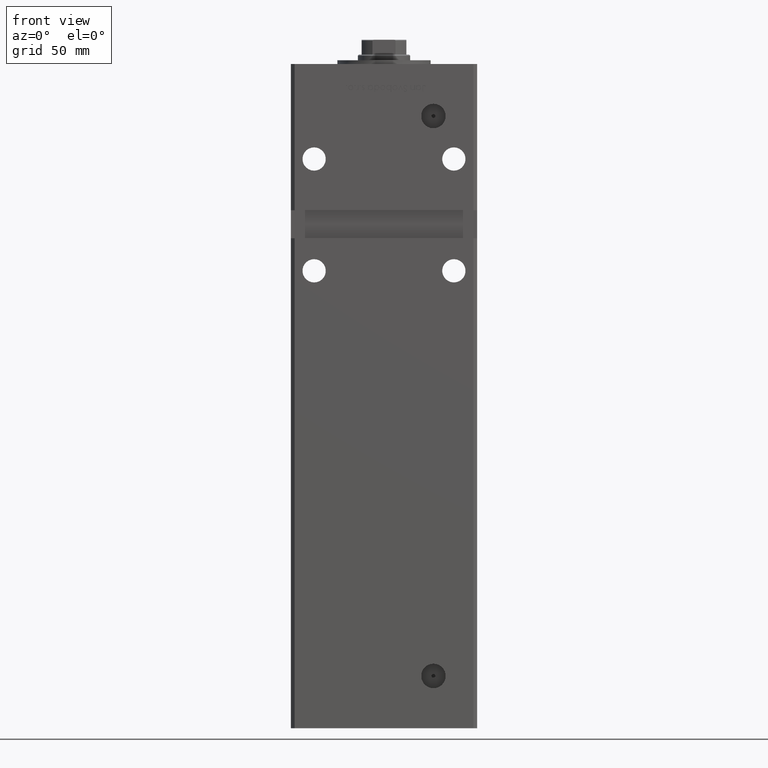
[diagram: clean part render]
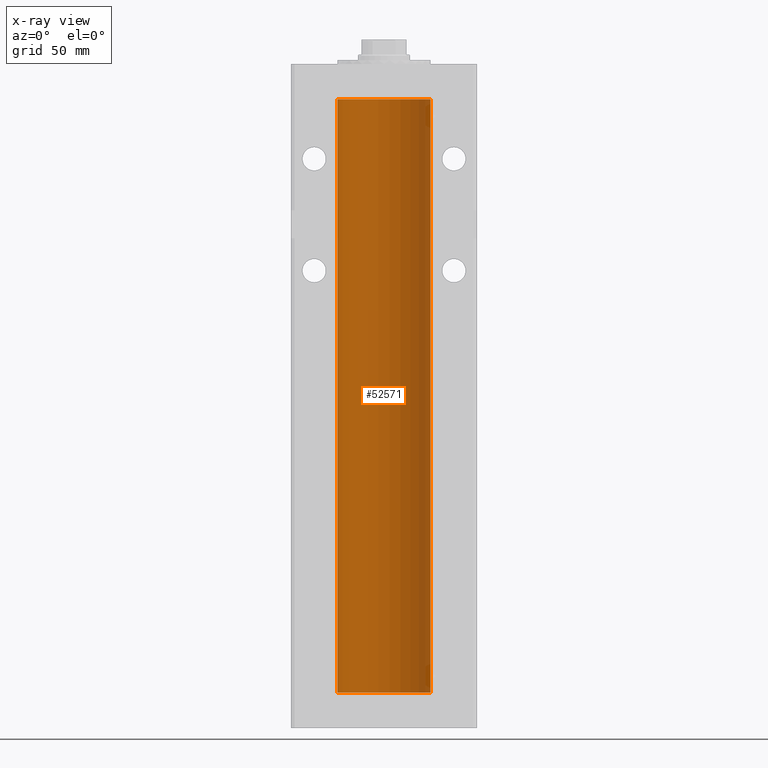
[diagram: x-ray — body ghosted, one internal face saturated and labeled with its STEP entity id]
A machine part, front view, then the same camera in x-ray: the body is ghosted and one INTERNAL B-rep face — a face not visible from any outside direction — is saturated and labeled: STEP entity #52571.
In plain terms, the highlighted cylindrical surface (partial cylindrical patch) has radius 25 mm, axis along (-0, -0, -1).
Its self-contained STEP definition (entity closure, byte-faithful):
#414 = DIRECTION ( 'NONE',  ( -0.000000000000000000, 0.000000000000000000, 1.000000000000000000 ) ) ;
#1154 = CARTESIAN_POINT ( 'NONE',  ( 0.000000000000000000, 0.000000000000000000, 318.5000000000000000 ) ) ;
#1489 = EDGE_CURVE ( 'NONE', #11617, #39902, #35305, .T. ) ;
#2667 = DIRECTION ( 'NONE',  ( 1.000000000000000000, 0.000000000000000000, 0.000000000000000000 ) ) ;
#6362 = CARTESIAN_POINT ( 'NONE',  ( 25.00000000000000000, 3.061616997868383043E-15, 318.5000000000000000 ) ) ;
#7941 = DIRECTION ( 'NONE',  ( 1.000000000000000000, 0.000000000000000000, 0.000000000000000000 ) ) ;
#8606 = EDGE_CURVE ( 'NONE', #11617, #37544, #43250, .T. ) ;
#8683 = CYLINDRICAL_SURFACE ( 'NONE', #52168, 25.00000000000000000 ) ;
#10415 = DIRECTION ( 'NONE',  ( -0.000000000000000000, -0.000000000000000000, -1.000000000000000000 ) ) ;
#10995 = DIRECTION ( 'NONE',  ( -0.000000000000000000, 0.000000000000000000, 1.000000000000000000 ) ) ;
#11617 = VERTEX_POINT ( 'NONE', #26118 ) ;
#12417 = VECTOR ( 'NONE', #42679, 1000.000000000000000 ) ;
#12447 = VERTEX_POINT ( 'NONE', #18948 ) ;
#15264 = CARTESIAN_POINT ( 'NONE',  ( -25.00000000000000000, 0.000000000000000000, 318.5000000000000000 ) ) ;
#16297 = CARTESIAN_POINT ( 'NONE',  ( 0.000000000000000000, 0.000000000000000000, 318.5000000000000000 ) ) ;
#17034 = DIRECTION ( 'NONE',  ( -1.000000000000000000, 0.000000000000000000, 0.000000000000000000 ) ) ;
#18948 = CARTESIAN_POINT ( 'NONE',  ( -25.00000000000000000, 0.000000000000000000, 0.000000000000000000 ) ) ;
#21586 = FACE_OUTER_BOUND ( 'NONE', #38497, .T. ) ;
#22700 = ORIENTED_EDGE ( 'NONE', *, *, #49937, .F. ) ;
#24628 = AXIS2_PLACEMENT_3D ( 'NONE', #39533, #10995, #2667 ) ;
#26118 = CARTESIAN_POINT ( 'NONE',  ( 25.00000000000000000, 3.061616997868383043E-15, 318.5000000000000000 ) ) ;
#26249 = CARTESIAN_POINT ( 'NONE',  ( -25.00000000000000000, 0.000000000000000000, 318.5000000000000000 ) ) ;
#30965 = ORIENTED_EDGE ( 'NONE', *, *, #41013, .T. ) ;
#31215 = CARTESIAN_POINT ( 'NONE',  ( 25.00000000000000000, 3.061616997868383043E-15, 0.000000000000000000 ) ) ;
#35305 = CIRCLE ( 'NONE', #36187, 25.00000000000000000 ) ;
#36187 = AXIS2_PLACEMENT_3D ( 'NONE', #16297, #414, #7941 ) ;
#36851 = VECTOR ( 'NONE', #10415, 1000.000000000000000 ) ;
#37544 = VERTEX_POINT ( 'NONE', #31215 ) ;
#38497 = EDGE_LOOP ( 'NONE', ( #46314, #44250, #30965, #22700 ) ) ;
#39533 = CARTESIAN_POINT ( 'NONE',  ( 0.000000000000000000, 0.000000000000000000, 0.000000000000000000 ) ) ;
#39902 = VERTEX_POINT ( 'NONE', #15264 ) ;
#41013 = EDGE_CURVE ( 'NONE', #39902, #12447, #46703, .T. ) ;
#41266 = DIRECTION ( 'NONE',  ( -0.000000000000000000, -0.000000000000000000, -1.000000000000000000 ) ) ;
#42679 = DIRECTION ( 'NONE',  ( -0.000000000000000000, -0.000000000000000000, -1.000000000000000000 ) ) ;
#43250 = LINE ( 'NONE', #6362, #36851 ) ;
#44250 = ORIENTED_EDGE ( 'NONE', *, *, #1489, .T. ) ;
#46314 = ORIENTED_EDGE ( 'NONE', *, *, #8606, .F. ) ;
#46703 = LINE ( 'NONE', #26249, #12417 ) ;
#47820 = CIRCLE ( 'NONE', #24628, 25.00000000000000000 ) ;
#49937 = EDGE_CURVE ( 'NONE', #37544, #12447, #47820, .T. ) ;
#52168 = AXIS2_PLACEMENT_3D ( 'NONE', #1154, #41266, #17034 ) ;
#52571 = ADVANCED_FACE ( 'NONE', ( #21586 ), #8683, .F. ) ;